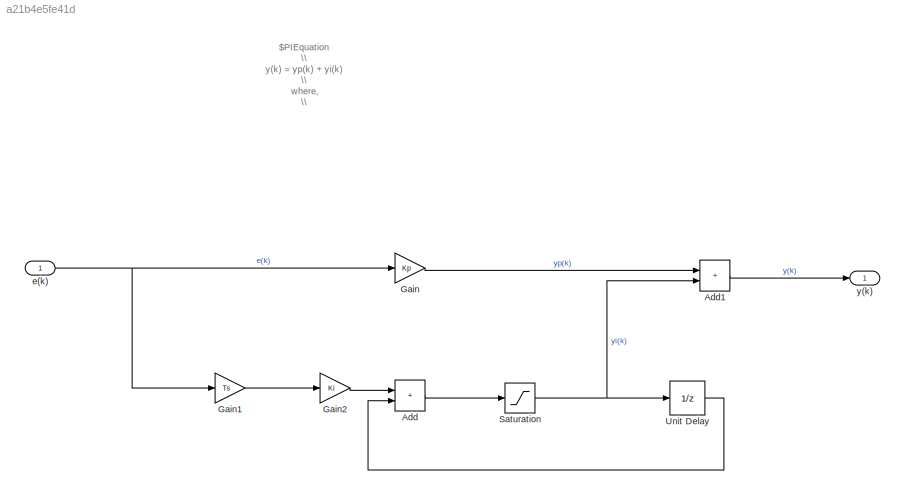
MODEL slx_a21b4e5fe41d
KIND model
CONFIG AbsTol = auto
CONFIG EnableMultiTasking = off
CONFIG FixedStep = auto
CONFIG MaxStep = auto
CONFIG MinStep = auto
CONFIG RelTol = 1e-3
CONFIG SampleTimeConstraint = Unconstrained
CONFIG SolverName = VariableStepAuto
CONFIG StartTime = 0.0
CONFIG StopTime = 10.0
BLOCK [Sum] Add
  IconShape = rectangular
  Ports = [2, 1]
BLOCK [Sum] Add1
  IconShape = rectangular
  Ports = [2, 1]
BLOCK [Gain] Gain
  Gain = Kp
BLOCK [Gain] Gain1
  Gain = Ts
BLOCK [Gain] Gain2
  Gain = Ki
BLOCK [Saturate] Saturation
  LowerLimit = -1
  UpperLimit = 1
BLOCK [UnitDelay] Unit Delay
  HasFrameUpgradeWarning = on
  SampleTime = -1
BLOCK [Inport] e(k)
  OutDataTypeStr = double
  PortDimensions = 1
  SampleTime = 0
  SamplingMode = Sample based
  SignalType = real
BLOCK [Outport] y(k)
  OutDataTypeStr = double
  PortDimensions = 1
  SampleTime = 0
  SamplingMode = Sample based
  SignalType = real
ANNOTATION (root): $PIEquation \\ y(k) = yp(k) + yi(k) \\ where, \\ yp(k)=Kp*e(k) \\ yi(k)=yi(k-1)+Ki*Ts*e(k) \\ -1<=yi(k)<=1$
LINE Add1:1 -> y(k):1
LINE Add:1 -> Saturation:1
LINE Gain1:1 -> Gain2:1
LINE Gain2:1 -> Add:1
LINE Gain:1 -> Add1:1
NET Saturation:1 -> Add1:2, Unit Delay:1
LINE Unit Delay:1 -> Add:2
NET e(k):1 -> Gain1:1, Gain:1
note: NET lines group one-source signal fan-out (src -> all destinations, sorted); 1:1 wires keep LINE
